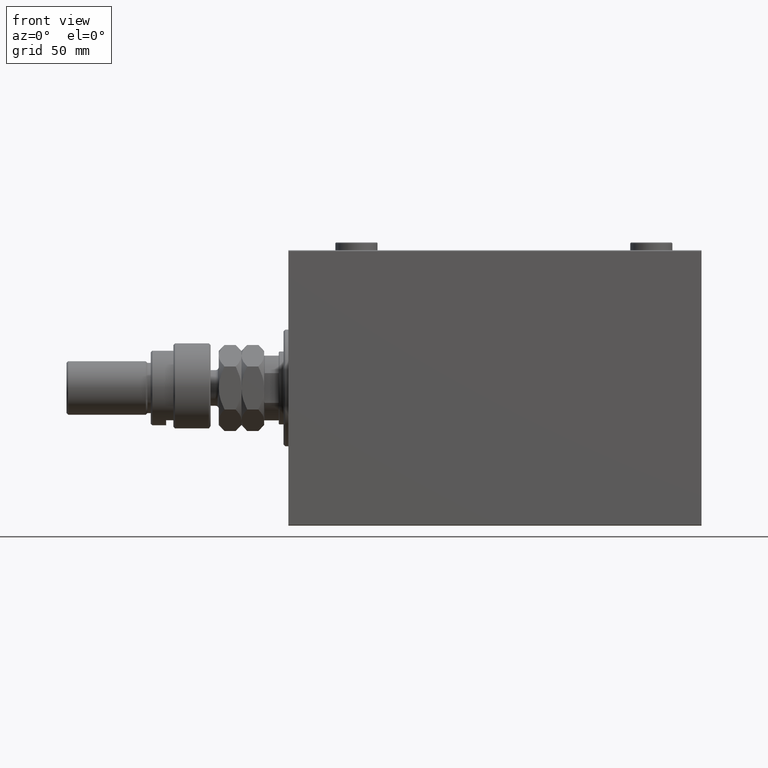
[diagram: clean part render]
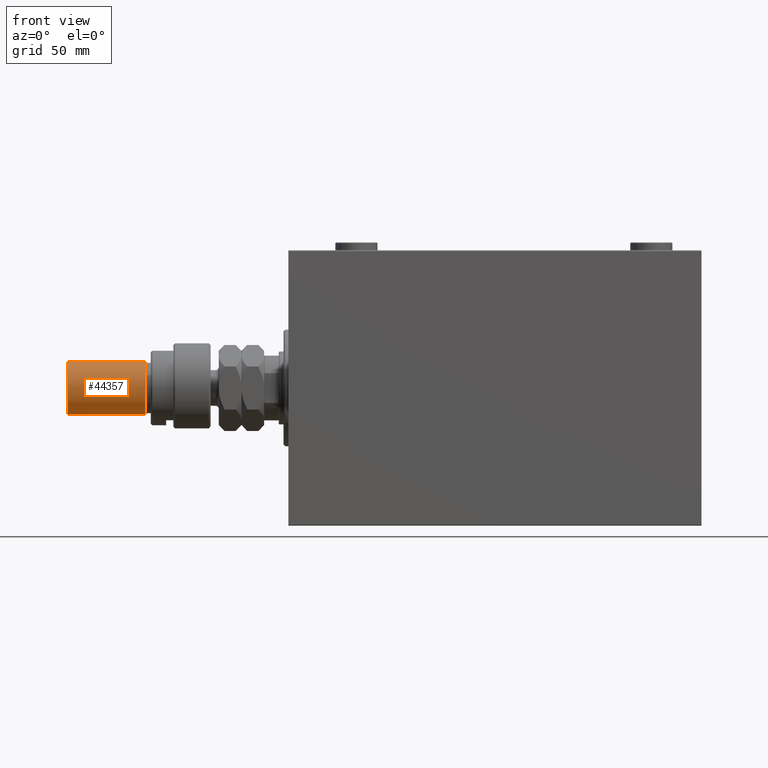
[diagram: same view with one face highlighted and labeled with its STEP entity id]
A machine part, front view. The second image highlights one B-rep face of the part: STEP entity #44357.
In plain terms, the highlighted cylindrical surface (edge-blend (fillet) strip) has radius 16.5 mm, axis along (1, -0, -0).
Its self-contained STEP definition (entity closure, byte-faithful):
#87 = DIRECTION ( 'NONE',  ( -0.000000000000000000, -0.000000000000000000, -1.000000000000000000 ) ) ;
#176 = AXIS2_PLACEMENT_3D ( 'NONE', #42047, #4693, #26801 ) ;
#417 = VERTEX_POINT ( 'NONE', #17816 ) ;
#3385 = EDGE_CURVE ( 'NONE', #7423, #9407, #43334, .T. ) ;
#4693 = DIRECTION ( 'NONE',  ( -0.000000000000000000, -0.000000000000000000, 1.000000000000000000 ) ) ;
#5020 = LINE ( 'NONE', #11891, #33327 ) ;
#6677 = CARTESIAN_POINT ( 'NONE',  ( 16.50000000000000000, 2.020667218593133100E-15, 89.00000000000000000 ) ) ;
#7423 = VERTEX_POINT ( 'NONE', #45415 ) ;
#8573 = EDGE_CURVE ( 'NONE', #15334, #7423, #5020, .T. ) ;
#9407 = VERTEX_POINT ( 'NONE', #37485 ) ;
#9674 = ORIENTED_EDGE ( 'NONE', *, *, #47994, .T. ) ;
#10849 = ORIENTED_EDGE ( 'NONE', *, *, #19903, .F. ) ;
#11854 = AXIS2_PLACEMENT_3D ( 'NONE', #29576, #87, #33994 ) ;
#11891 = CARTESIAN_POINT ( 'NONE',  ( -16.50000000000000000, 0.000000000000000000, 89.00000000000000000 ) ) ;
#12618 = DIRECTION ( 'NONE',  ( -0.000000000000000000, -0.000000000000000000, -1.000000000000000000 ) ) ;
#15334 = VERTEX_POINT ( 'NONE', #40460 ) ;
#17816 = CARTESIAN_POINT ( 'NONE',  ( 16.50000000000000000, 2.020667218593133100E-15, 88.00000000000001421 ) ) ;
#18838 = DIRECTION ( 'NONE',  ( 0.000000000000000000, 0.000000000000000000, -1.000000000000000000 ) ) ;
#19816 = CARTESIAN_POINT ( 'NONE',  ( 0.000000000000000000, 0.000000000000000000, 88.00000000000001421 ) ) ;
#19903 = EDGE_CURVE ( 'NONE', #417, #9407, #21662, .T. ) ;
#21662 = LINE ( 'NONE', #6677, #45853 ) ;
#25945 = CIRCLE ( 'NONE', #27519, 16.50000000000000000 ) ;
#26608 = FACE_OUTER_BOUND ( 'NONE', #48447, .T. ) ;
#26801 = DIRECTION ( 'NONE',  ( 1.000000000000000000, 0.000000000000000000, 0.000000000000000000 ) ) ;
#27519 = AXIS2_PLACEMENT_3D ( 'NONE', #19816, #18838, #42180 ) ;
#28567 = ORIENTED_EDGE ( 'NONE', *, *, #3385, .T. ) ;
#29576 = CARTESIAN_POINT ( 'NONE',  ( 0.000000000000000000, 0.000000000000000000, 89.00000000000000000 ) ) ;
#33327 = VECTOR ( 'NONE', #12618, 1000.000000000000000 ) ;
#33437 = DIRECTION ( 'NONE',  ( -0.000000000000000000, -0.000000000000000000, -1.000000000000000000 ) ) ;
#33994 = DIRECTION ( 'NONE',  ( -1.000000000000000000, 0.000000000000000000, 0.000000000000000000 ) ) ;
#37447 = CYLINDRICAL_SURFACE ( 'NONE', #11854, 16.50000000000000000 ) ;
#37485 = CARTESIAN_POINT ( 'NONE',  ( 16.50000000000000000, 2.020667218593133100E-15, 39.99999999999998579 ) ) ;
#40460 = CARTESIAN_POINT ( 'NONE',  ( -16.50000000000000000, 0.000000000000000000, 88.00000000000001421 ) ) ;
#42047 = CARTESIAN_POINT ( 'NONE',  ( 0.000000000000000000, 0.000000000000000000, 39.99999999999998579 ) ) ;
#42180 = DIRECTION ( 'NONE',  ( 1.000000000000000000, 0.000000000000000000, 0.000000000000000000 ) ) ;
#43334 = CIRCLE ( 'NONE', #176, 16.50000000000000000 ) ;
#44357 = ADVANCED_FACE ( 'NONE', ( #26608 ), #37447, .T. ) ;
#45415 = CARTESIAN_POINT ( 'NONE',  ( -16.50000000000000000, 0.000000000000000000, 39.99999999999998579 ) ) ;
#45853 = VECTOR ( 'NONE', #33437, 1000.000000000000000 ) ;
#47994 = EDGE_CURVE ( 'NONE', #417, #15334, #25945, .T. ) ;
#48438 = ORIENTED_EDGE ( 'NONE', *, *, #8573, .T. ) ;
#48447 = EDGE_LOOP ( 'NONE', ( #10849, #9674, #48438, #28567 ) ) ;